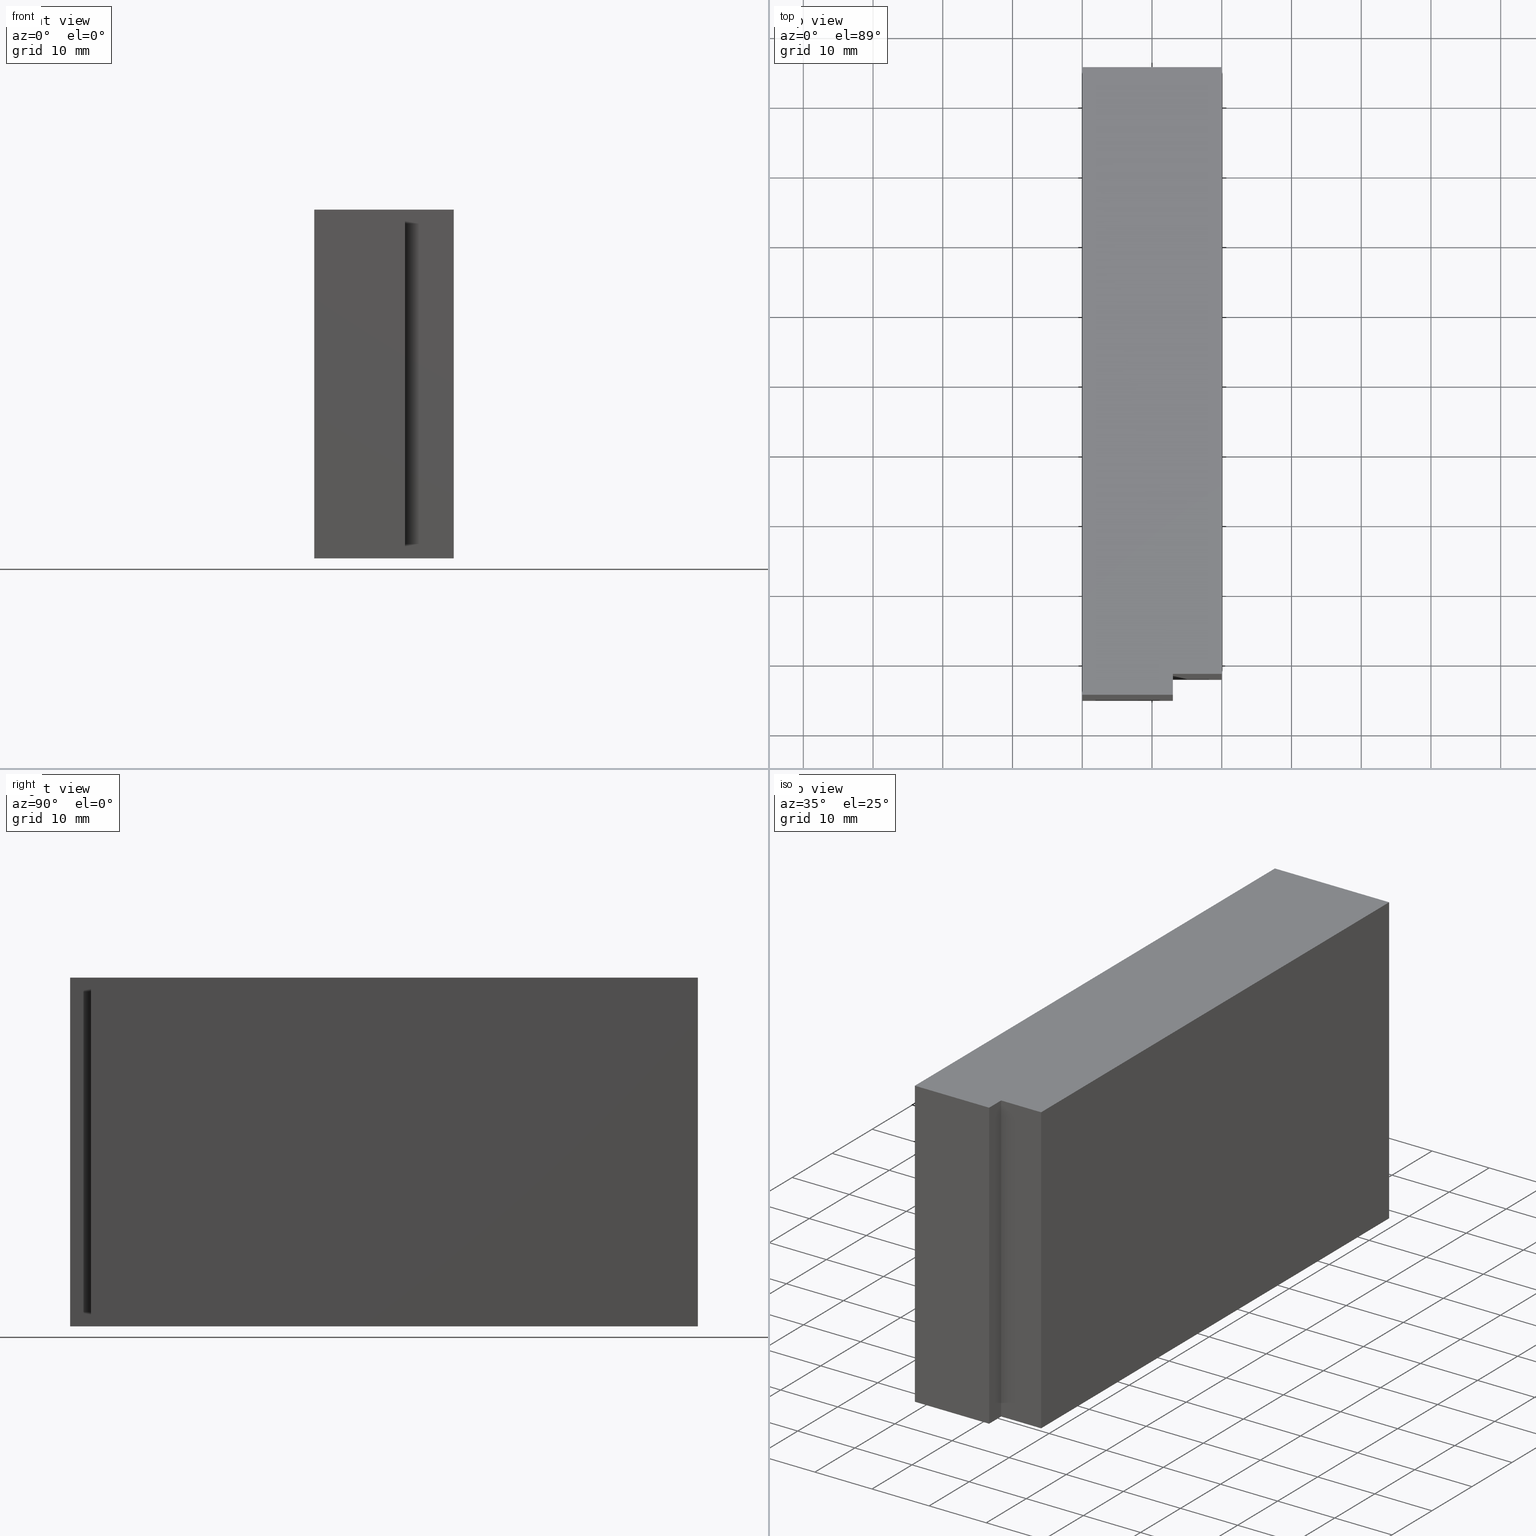
[diagram: canonical four-view strip — front | top / right | iso, engineering-drawing reading convention]
A machine part, canonical four-view strip (front | top / right | iso — engineering-drawing reading convention). The complete STEP part file that produces these views, byte-faithful:
ISO-10303-21;
HEADER;
/* Generated by software containing ST-Developer
 * from STEP Tools, Inc. (www.steptools.com) 
 */

FILE_DESCRIPTION(
/* description */ (''),
/* implementation_level */ '2;1');

FILE_NAME(
/* name */ 
'H:\\Eigene Dateien\\CAD Workspace Vault\\CAD\\E_3_Nocken\\E_3_01_Aufs
chwei\X\DFnocke\\02_Rechteck\\E_3_01_02_00_00_WKZ-0099.stp',
/* time_stamp */ '2024-05-16T12:48:47+02:00',
/* author */ ('dfischer'),
/* organization */ (''),
/* preprocessor_version */ 'ST-DEVELOPER v18.1',
/* originating_system */ 'Autodesk Inventor 2021',
/* authorisation */ '');

FILE_SCHEMA (('AUTOMOTIVE_DESIGN { 1 0 10303 214 3 1 1 }'));
ENDSEC;

DATA;
#10=MECHANICAL_DESIGN_GEOMETRIC_PRESENTATION_REPRESENTATION('',(#14,#15),
#256);
#11=SHAPE_REPRESENTATION_RELATIONSHIP('SRR','None',#263,#12);
#12=ADVANCED_BREP_SHAPE_REPRESENTATION('',(#13),#255);
#13=MANIFOLD_SOLID_BREP('Volumenk\X\F6rper1',#150);
#14=STYLED_ITEM('',(#273),#148);
#15=STYLED_ITEM('',(#272),#13);
#16=FACE_OUTER_BOUND('',#24,.T.);
#17=FACE_OUTER_BOUND('',#25,.T.);
#18=FACE_OUTER_BOUND('',#26,.T.);
#19=FACE_OUTER_BOUND('',#27,.T.);
#20=FACE_OUTER_BOUND('',#28,.T.);
#21=FACE_OUTER_BOUND('',#29,.T.);
#22=FACE_OUTER_BOUND('',#30,.T.);
#23=FACE_OUTER_BOUND('',#31,.T.);
#24=EDGE_LOOP('',(#98,#99,#100,#101,#102,#103));
#25=EDGE_LOOP('',(#104,#105,#106,#107));
#26=EDGE_LOOP('',(#108,#109,#110,#111));
#27=EDGE_LOOP('',(#112,#113,#114,#115));
#28=EDGE_LOOP('',(#116,#117,#118,#119));
#29=EDGE_LOOP('',(#120,#121,#122,#123));
#30=EDGE_LOOP('',(#124,#125,#126,#127));
#31=EDGE_LOOP('',(#128,#129,#130,#131,#132,#133));
#32=LINE('',#218,#50);
#33=LINE('',#220,#51);
#34=LINE('',#222,#52);
#35=LINE('',#224,#53);
#36=LINE('',#226,#54);
#37=LINE('',#227,#55);
#38=LINE('',#231,#56);
#39=LINE('',#232,#57);
#40=LINE('',#233,#58);
#41=LINE('',#236,#59);
#42=LINE('',#237,#60);
#43=LINE('',#240,#61);
#44=LINE('',#241,#62);
#45=LINE('',#244,#63);
#46=LINE('',#245,#64);
#47=LINE('',#248,#65);
#48=LINE('',#249,#66);
#49=LINE('',#251,#67);
#50=VECTOR('',#182,10.);
#51=VECTOR('',#183,10.);
#52=VECTOR('',#184,10.);
#53=VECTOR('',#185,10.);
#54=VECTOR('',#186,10.);
#55=VECTOR('',#187,10.);
#56=VECTOR('',#190,10.);
#57=VECTOR('',#191,10.);
#58=VECTOR('',#192,10.);
#59=VECTOR('',#195,10.);
#60=VECTOR('',#196,10.);
#61=VECTOR('',#199,10.);
#62=VECTOR('',#200,10.);
#63=VECTOR('',#203,10.);
#64=VECTOR('',#204,10.);
#65=VECTOR('',#207,10.);
#66=VECTOR('',#208,10.);
#67=VECTOR('',#211,10.);
#68=VERTEX_POINT('',#216);
#69=VERTEX_POINT('',#217);
#70=VERTEX_POINT('',#219);
#71=VERTEX_POINT('',#221);
#72=VERTEX_POINT('',#223);
#73=VERTEX_POINT('',#225);
#74=VERTEX_POINT('',#229);
#75=VERTEX_POINT('',#230);
#76=VERTEX_POINT('',#235);
#77=VERTEX_POINT('',#239);
#78=VERTEX_POINT('',#243);
#79=VERTEX_POINT('',#247);
#80=EDGE_CURVE('',#68,#69,#32,.T.);
#81=EDGE_CURVE('',#70,#68,#33,.T.);
#82=EDGE_CURVE('',#71,#70,#34,.T.);
#83=EDGE_CURVE('',#72,#71,#35,.T.);
#84=EDGE_CURVE('',#73,#72,#36,.T.);
#85=EDGE_CURVE('',#69,#73,#37,.T.);
#86=EDGE_CURVE('',#74,#75,#38,.T.);
#87=EDGE_CURVE('',#71,#75,#39,.T.);
#88=EDGE_CURVE('',#74,#70,#40,.T.);
#89=EDGE_CURVE('',#75,#76,#41,.T.);
#90=EDGE_CURVE('',#72,#76,#42,.T.);
#91=EDGE_CURVE('',#76,#77,#43,.T.);
#92=EDGE_CURVE('',#73,#77,#44,.T.);
#93=EDGE_CURVE('',#77,#78,#45,.T.);
#94=EDGE_CURVE('',#69,#78,#46,.T.);
#95=EDGE_CURVE('',#78,#79,#47,.T.);
#96=EDGE_CURVE('',#68,#79,#48,.T.);
#97=EDGE_CURVE('',#79,#74,#49,.T.);
#98=ORIENTED_EDGE('',*,*,#80,.F.);
#99=ORIENTED_EDGE('',*,*,#81,.F.);
#100=ORIENTED_EDGE('',*,*,#82,.F.);
#101=ORIENTED_EDGE('',*,*,#83,.F.);
#102=ORIENTED_EDGE('',*,*,#84,.F.);
#103=ORIENTED_EDGE('',*,*,#85,.F.);
#104=ORIENTED_EDGE('',*,*,#86,.T.);
#105=ORIENTED_EDGE('',*,*,#87,.F.);
#106=ORIENTED_EDGE('',*,*,#82,.T.);
#107=ORIENTED_EDGE('',*,*,#88,.F.);
#108=ORIENTED_EDGE('',*,*,#89,.T.);
#109=ORIENTED_EDGE('',*,*,#90,.F.);
#110=ORIENTED_EDGE('',*,*,#83,.T.);
#111=ORIENTED_EDGE('',*,*,#87,.T.);
#112=ORIENTED_EDGE('',*,*,#91,.T.);
#113=ORIENTED_EDGE('',*,*,#92,.F.);
#114=ORIENTED_EDGE('',*,*,#84,.T.);
#115=ORIENTED_EDGE('',*,*,#90,.T.);
#116=ORIENTED_EDGE('',*,*,#93,.T.);
#117=ORIENTED_EDGE('',*,*,#94,.F.);
#118=ORIENTED_EDGE('',*,*,#85,.T.);
#119=ORIENTED_EDGE('',*,*,#92,.T.);
#120=ORIENTED_EDGE('',*,*,#95,.T.);
#121=ORIENTED_EDGE('',*,*,#96,.F.);
#122=ORIENTED_EDGE('',*,*,#80,.T.);
#123=ORIENTED_EDGE('',*,*,#94,.T.);
#124=ORIENTED_EDGE('',*,*,#97,.T.);
#125=ORIENTED_EDGE('',*,*,#88,.T.);
#126=ORIENTED_EDGE('',*,*,#81,.T.);
#127=ORIENTED_EDGE('',*,*,#96,.T.);
#128=ORIENTED_EDGE('',*,*,#86,.F.);
#129=ORIENTED_EDGE('',*,*,#97,.F.);
#130=ORIENTED_EDGE('',*,*,#95,.F.);
#131=ORIENTED_EDGE('',*,*,#93,.F.);
#132=ORIENTED_EDGE('',*,*,#91,.F.);
#133=ORIENTED_EDGE('',*,*,#89,.F.);
#134=PLANE('',#170);
#135=PLANE('',#171);
#136=PLANE('',#172);
#137=PLANE('',#173);
#138=PLANE('',#174);
#139=PLANE('',#175);
#140=PLANE('',#176);
#141=PLANE('',#177);
#142=ADVANCED_FACE('',(#16),#134,.F.);
#143=ADVANCED_FACE('',(#17),#135,.T.);
#144=ADVANCED_FACE('',(#18),#136,.T.);
#145=ADVANCED_FACE('',(#19),#137,.T.);
#146=ADVANCED_FACE('',(#20),#138,.T.);
#147=ADVANCED_FACE('',(#21),#139,.T.);
#148=ADVANCED_FACE('',(#22),#140,.T.);
#149=ADVANCED_FACE('',(#23),#141,.T.);
#150=CLOSED_SHELL('',(#142,#143,#144,#145,#146,#147,#148,#149));
#151=DERIVED_UNIT_ELEMENT(#153,1.);
#152=DERIVED_UNIT_ELEMENT(#258,3.);
#153=(
MASS_UNIT()
NAMED_UNIT(*)
SI_UNIT($,.GRAM.)
);
#154=DERIVED_UNIT((#151,#152));
#155=MEASURE_REPRESENTATION_ITEM('density measure',
POSITIVE_RATIO_MEASURE(8.03),#154);
#156=PROPERTY_DEFINITION_REPRESENTATION(#161,#158);
#157=PROPERTY_DEFINITION_REPRESENTATION(#162,#159);
#158=REPRESENTATION('material name',(#160),#255);
#159=REPRESENTATION('density',(#155),#255);
#160=DESCRIPTIVE_REPRESENTATION_ITEM('1.4301','1.4301');
#161=PROPERTY_DEFINITION('material property','material name',#265);
#162=PROPERTY_DEFINITION('material property','density of part',#265);
#163=DATE_TIME_ROLE('creation_date');
#164=APPLIED_DATE_AND_TIME_ASSIGNMENT(#165,#163,(#265));
#165=DATE_AND_TIME(#166,#167);
#166=CALENDAR_DATE(2011,20,10);
#167=LOCAL_TIME(0,0,0.,#168);
#168=COORDINATED_UNIVERSAL_TIME_OFFSET(0,0,.BEHIND.);
#169=AXIS2_PLACEMENT_3D('placement',#214,#178,#179);
#170=AXIS2_PLACEMENT_3D('',#215,#180,#181);
#171=AXIS2_PLACEMENT_3D('',#228,#188,#189);
#172=AXIS2_PLACEMENT_3D('',#234,#193,#194);
#173=AXIS2_PLACEMENT_3D('',#238,#197,#198);
#174=AXIS2_PLACEMENT_3D('',#242,#201,#202);
#175=AXIS2_PLACEMENT_3D('',#246,#205,#206);
#176=AXIS2_PLACEMENT_3D('',#250,#209,#210);
#177=AXIS2_PLACEMENT_3D('',#252,#212,#213);
#178=DIRECTION('axis',(0.,0.,1.));
#179=DIRECTION('refdir',(1.,0.,0.));
#180=DIRECTION('center_axis',(0.,0.,1.));
#181=DIRECTION('ref_axis',(1.,0.,0.));
#182=DIRECTION('',(5.18104078158407E-15,1.,0.));
#183=DIRECTION('',(1.,0.,0.));
#184=DIRECTION('',(0.,-1.,0.));
#185=DIRECTION('',(-1.,0.,0.));
#186=DIRECTION('',(-3.82835525732813E-16,1.,0.));
#187=DIRECTION('',(1.,0.,0.));
#188=DIRECTION('center_axis',(-1.,0.,0.));
#189=DIRECTION('ref_axis',(0.,0.,1.));
#190=DIRECTION('',(0.,1.,0.));
#191=DIRECTION('',(0.,0.,1.));
#192=DIRECTION('',(0.,0.,-1.));
#193=DIRECTION('center_axis',(0.,1.,0.));
#194=DIRECTION('ref_axis',(0.,0.,1.));
#195=DIRECTION('',(1.,0.,0.));
#196=DIRECTION('',(0.,0.,1.));
#197=DIRECTION('center_axis',(1.,3.82835525732813E-16,0.));
#198=DIRECTION('ref_axis',(0.,0.,-1.));
#199=DIRECTION('',(3.82835525732813E-16,-1.,0.));
#200=DIRECTION('',(0.,0.,1.));
#201=DIRECTION('center_axis',(0.,-1.,0.));
#202=DIRECTION('ref_axis',(0.,0.,-1.));
#203=DIRECTION('',(-1.,0.,0.));
#204=DIRECTION('',(0.,0.,1.));
#205=DIRECTION('center_axis',(1.,-5.18104078158407E-15,0.));
#206=DIRECTION('ref_axis',(0.,0.,-1.));
#207=DIRECTION('',(-5.18104078158407E-15,-1.,0.));
#208=DIRECTION('',(0.,0.,1.));
#209=DIRECTION('center_axis',(0.,-1.,0.));
#210=DIRECTION('ref_axis',(0.,0.,-1.));
#211=DIRECTION('',(-1.,0.,0.));
#212=DIRECTION('center_axis',(0.,0.,1.));
#213=DIRECTION('ref_axis',(1.,0.,0.));
#214=CARTESIAN_POINT('',(0.,0.,0.));
#215=CARTESIAN_POINT('Origin',(-0.0954545454545455,0.0954545454545403,-25.));
#216=CARTESIAN_POINT('',(3.00000000000002,-45.,-25.));
#217=CARTESIAN_POINT('',(3.00000000000004,-42.,-25.));
#218=CARTESIAN_POINT('',(3.00000000000002,-45.,-25.));
#219=CARTESIAN_POINT('',(-10.,-45.,-25.));
#220=CARTESIAN_POINT('',(-10.,-45.,-25.));
#221=CARTESIAN_POINT('',(-10.,45.,-25.));
#222=CARTESIAN_POINT('',(-10.,45.,-25.));
#223=CARTESIAN_POINT('',(9.99999999999999,45.,-25.));
#224=CARTESIAN_POINT('',(9.99999999999999,45.,-25.));
#225=CARTESIAN_POINT('',(10.,-42.,-25.));
#226=CARTESIAN_POINT('',(10.,-42.,-25.));
#227=CARTESIAN_POINT('',(3.00000000000004,-42.,-25.));
#228=CARTESIAN_POINT('Origin',(-10.,-45.,0.));
#229=CARTESIAN_POINT('',(-10.,-45.,25.));
#230=CARTESIAN_POINT('',(-10.,45.,25.));
#231=CARTESIAN_POINT('',(-10.,45.,25.));
#232=CARTESIAN_POINT('',(-10.,45.,0.));
#233=CARTESIAN_POINT('',(-10.,-45.,0.));
#234=CARTESIAN_POINT('Origin',(-10.,45.,0.));
#235=CARTESIAN_POINT('',(9.99999999999999,45.,25.));
#236=CARTESIAN_POINT('',(9.99999999999999,45.,25.));
#237=CARTESIAN_POINT('',(9.99999999999999,45.,0.));
#238=CARTESIAN_POINT('Origin',(9.99999999999999,45.,0.));
#239=CARTESIAN_POINT('',(10.,-42.,25.));
#240=CARTESIAN_POINT('',(10.,-42.,25.));
#241=CARTESIAN_POINT('',(10.,-42.,0.));
#242=CARTESIAN_POINT('Origin',(10.,-42.,0.));
#243=CARTESIAN_POINT('',(3.00000000000004,-42.,25.));
#244=CARTESIAN_POINT('',(3.00000000000004,-42.,25.));
#245=CARTESIAN_POINT('',(3.00000000000004,-42.,0.));
#246=CARTESIAN_POINT('Origin',(3.00000000000004,-42.,0.));
#247=CARTESIAN_POINT('',(3.00000000000002,-45.,25.));
#248=CARTESIAN_POINT('',(3.00000000000002,-45.,25.));
#249=CARTESIAN_POINT('',(3.00000000000002,-45.,0.));
#250=CARTESIAN_POINT('Origin',(3.00000000000002,-45.,0.));
#251=CARTESIAN_POINT('',(-10.,-45.,25.));
#252=CARTESIAN_POINT('Origin',(-0.0954545454545452,0.0954545454545409,25.));
#253=UNCERTAINTY_MEASURE_WITH_UNIT(LENGTH_MEASURE(0.01),#257,
'DISTANCE_ACCURACY_VALUE',
'Maximum model space distance between geometric entities at asserted c
onnectivities');
#254=UNCERTAINTY_MEASURE_WITH_UNIT(LENGTH_MEASURE(0.01),#257,
'DISTANCE_ACCURACY_VALUE',
'Maximum model space distance between geometric entities at asserted c
onnectivities');
#255=(
GEOMETRIC_REPRESENTATION_CONTEXT(3)
GLOBAL_UNCERTAINTY_ASSIGNED_CONTEXT((#253))
GLOBAL_UNIT_ASSIGNED_CONTEXT((#257,#259,#260))
REPRESENTATION_CONTEXT('','3D')
);
#256=(
GEOMETRIC_REPRESENTATION_CONTEXT(3)
GLOBAL_UNCERTAINTY_ASSIGNED_CONTEXT((#254))
GLOBAL_UNIT_ASSIGNED_CONTEXT((#257,#259,#260))
REPRESENTATION_CONTEXT('','3D')
);
#257=(
LENGTH_UNIT()
NAMED_UNIT(*)
SI_UNIT(.MILLI.,.METRE.)
);
#258=(
LENGTH_UNIT()
NAMED_UNIT(*)
SI_UNIT(.CENTI.,.METRE.)
);
#259=(
NAMED_UNIT(*)
PLANE_ANGLE_UNIT()
SI_UNIT($,.RADIAN.)
);
#260=(
NAMED_UNIT(*)
SI_UNIT($,.STERADIAN.)
SOLID_ANGLE_UNIT()
);
#261=SHAPE_DEFINITION_REPRESENTATION(#262,#263);
#262=PRODUCT_DEFINITION_SHAPE('',$,#265);
#263=SHAPE_REPRESENTATION('',(#169),#255);
#264=PRODUCT_DEFINITION_CONTEXT('part definition',#269,'design');
#265=PRODUCT_DEFINITION('WKZ-0099','E_3_01_02_00_00_WKZ-0099',#266,#264);
#266=PRODUCT_DEFINITION_FORMATION('',$,#271);
#267=PRODUCT_RELATED_PRODUCT_CATEGORY('E_3_01_02_00_00_WKZ-0099',
'E_3_01_02_00_00_WKZ-0099',(#271));
#268=APPLICATION_PROTOCOL_DEFINITION('international standard',
'automotive_design',2009,#269);
#269=APPLICATION_CONTEXT(
'Core Data for Automotive Mechanical Design Process');
#270=PRODUCT_CONTEXT('part definition',#269,'mechanical');
#271=PRODUCT('WKZ-0099','E_3_01_02_00_00_WKZ-0099',$,(#270));
#272=PRESENTATION_STYLE_ASSIGNMENT((#274));
#273=PRESENTATION_STYLE_ASSIGNMENT((#275));
#274=SURFACE_STYLE_USAGE(.BOTH.,#278);
#275=SURFACE_STYLE_USAGE(.BOTH.,#279);
#276=SURFACE_STYLE_RENDERING_WITH_PROPERTIES($,#286,(#277));
#277=SURFACE_STYLE_TRANSPARENT(0.);
#278=SURFACE_SIDE_STYLE('',(#280,#276));
#279=SURFACE_SIDE_STYLE('',(#281));
#280=SURFACE_STYLE_FILL_AREA(#282);
#281=SURFACE_STYLE_FILL_AREA(#283);
#282=FILL_AREA_STYLE('',(#284));
#283=FILL_AREA_STYLE('',(#285));
#284=FILL_AREA_STYLE_COLOUR('',#286);
#285=FILL_AREA_STYLE_COLOUR('',#287);
#286=COLOUR_RGB('',0.92156862745098,0.92156862745098,0.92156862745098);
#287=COLOUR_RGB('',0.16078431372549,0.16078431372549,0.16078431372549);
ENDSEC;
END-ISO-10303-21;
